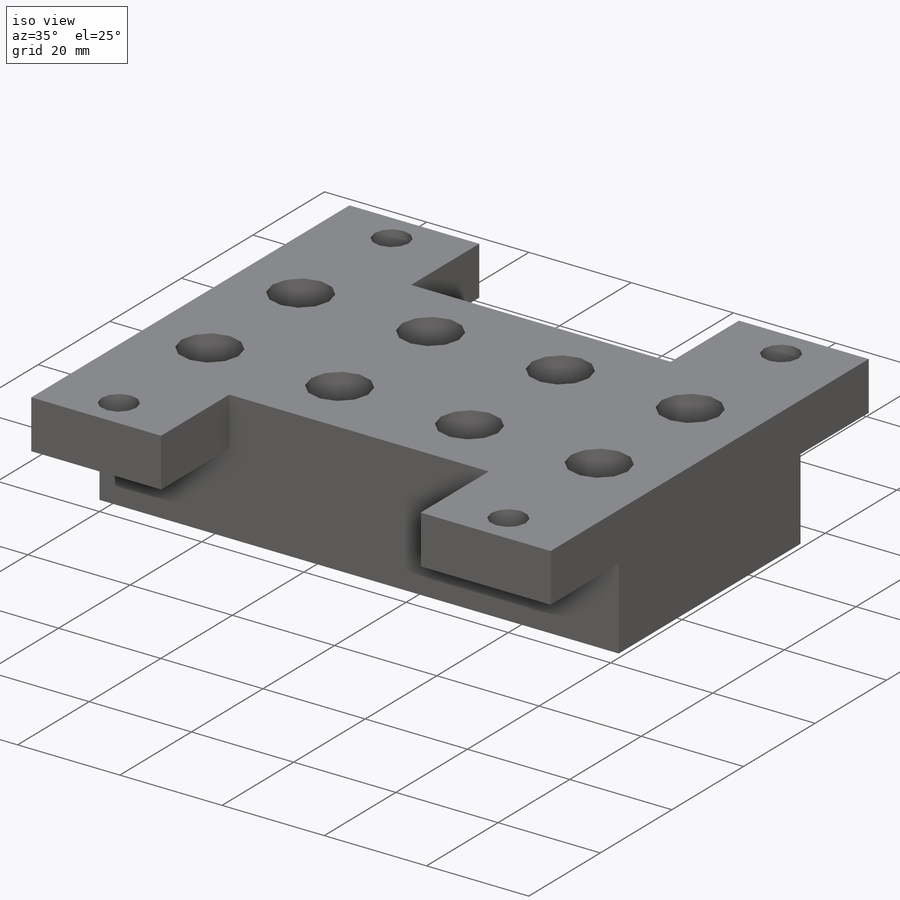
[diagram: iso view]
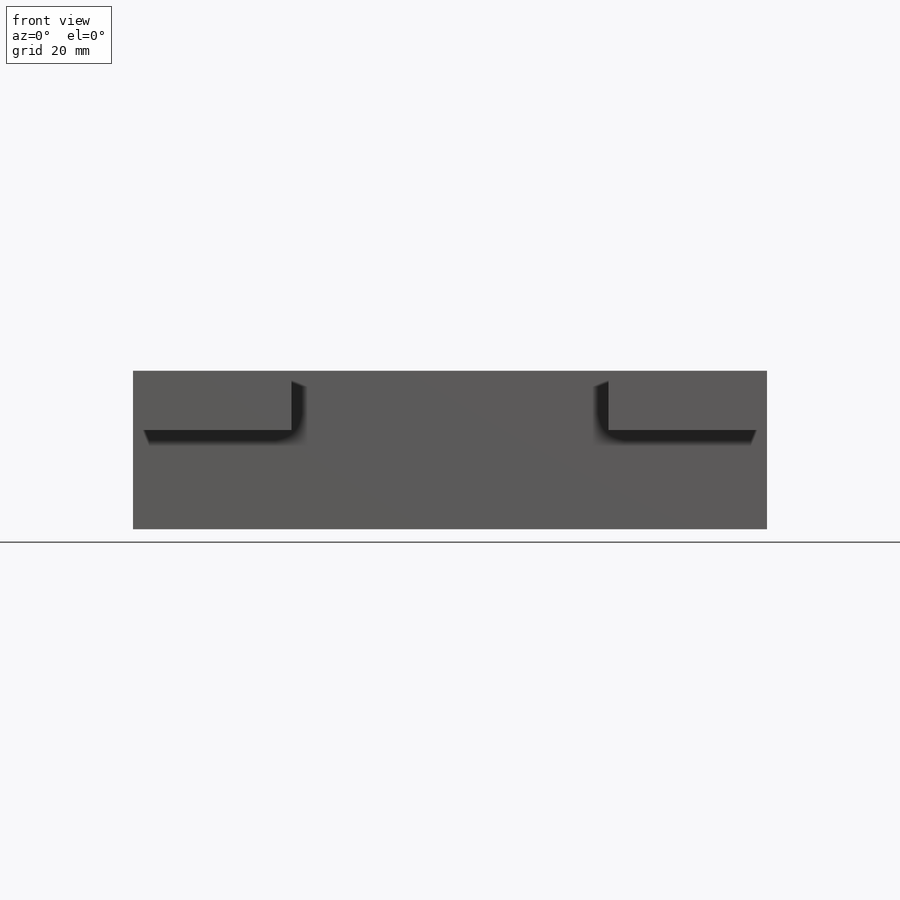
[diagram: front view]
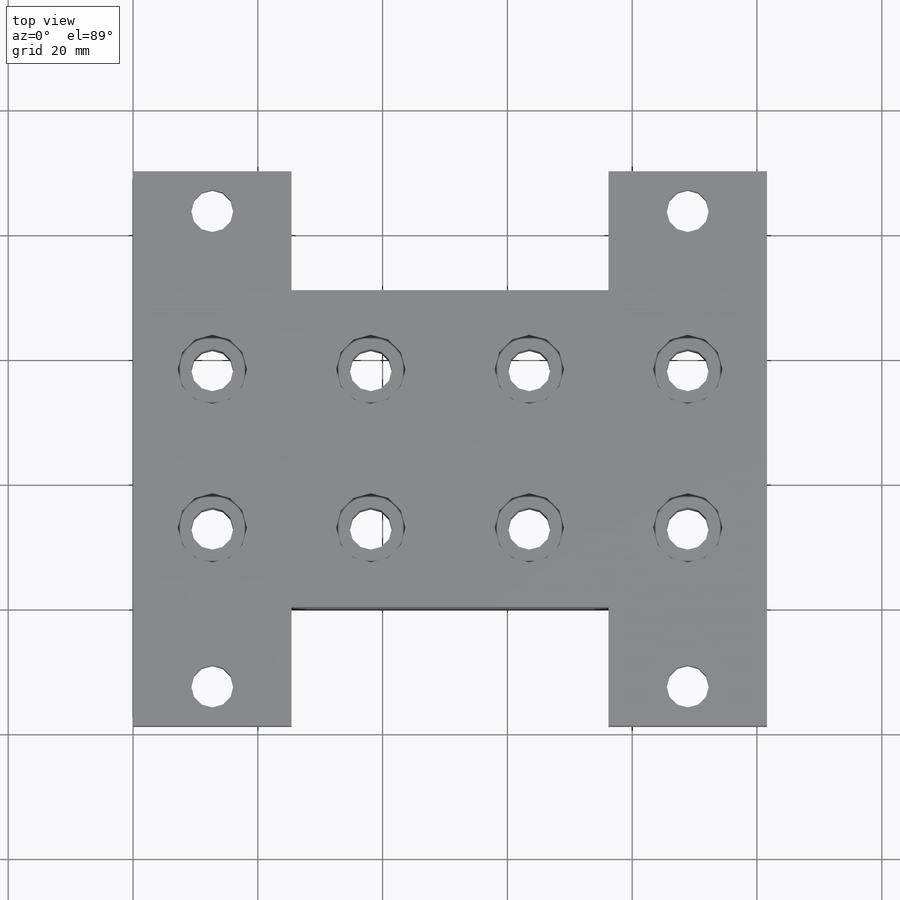
[diagram: top view]
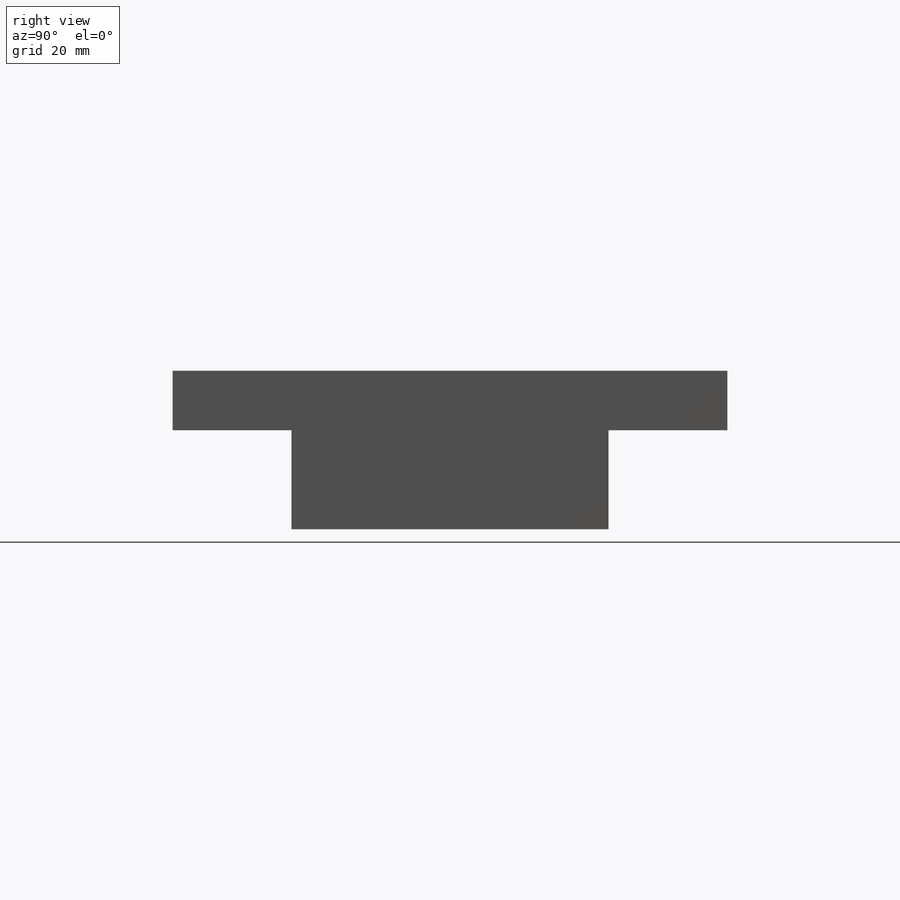
[diagram: right view]
SOLIDWORKS PART (.sldprt)
format: sldprt  version: not decoded by parser v0  size: 306,176 bytes
history: native  units: mm
features: sketch x9, pattern_linear x5, extrude x3, hole x2, cut_extrude x2, material x1 (+11 scaffold rows collapsed)
feature tree (33):
  scaffold x11  (default folders/planes/origin — collapsed)
  material  "Material <not specified>"
  sketch  "Sketch1"
  extrude  "Boss-Extrude1"  Depth=25.4mm
  hole  "CBORE for 1/4 Socket Head Cap Screw1"  Diameter=6.7564mm Depth=25.4mm
  sketch  "Sketch4"
  sketch  "Sketch3"  dims[hole-wizard template sketch: 44 standard entries collapsed; hole parameters kept: c12.C'Bore Depth=6.35mm]
  pattern_linear  "LPattern1"  Count1=2 Count2=4 Spacing1=25.4mm Spacing2=25.4mm
  hole  "1/4 Clearance Hole1"  Diameter=6.7564mm Depth=25.400025mm
  sketch  "Sketch6"
  sketch  "Sketch5"  dims[hole-wizard template sketch: 60 standard entries collapsed; hole parameters kept: c18.Thru Hole Depth=~25.400025mm]
  pattern_linear  "LPattern2"  Count1=4 Count2=1 Spacing1=25.4mm Spacing2=25.4mm
  sketch  "Sketch7"
  extrude  "Boss-Extrude2"  Depth=19.05mm
  sketch  "Sketch8"
  pattern_linear  "LPattern3"  Count1=2 Count2=1 Spacing1=25.4mm Spacing2=25.4mm
  pattern_linear  "LPattern4"  Count1=2 Count2=1 Spacing1=76.2mm Spacing2=25.4mm
  sketch  "Sketch11"
  extrude  "Boss-Extrude3"  Depth=19.05mm
  cut_extrude  "Cut-Extrude1"  Depth=19.05mm
  sketch  "Sketch12"
  cut_extrude  "Cut-Extrude2"  Depth=19.05mm
  pattern_linear  "LPattern5"  Count1=2 Count2=2 Spacing1=50.8mm Spacing2=76.2mm
decode coverage: 14 of 21 modeling features carry decoded parameters
note: ~ marks probable driven/reference dimensions
note: suppression state not decoded; provenance and decode notes live in map.json
